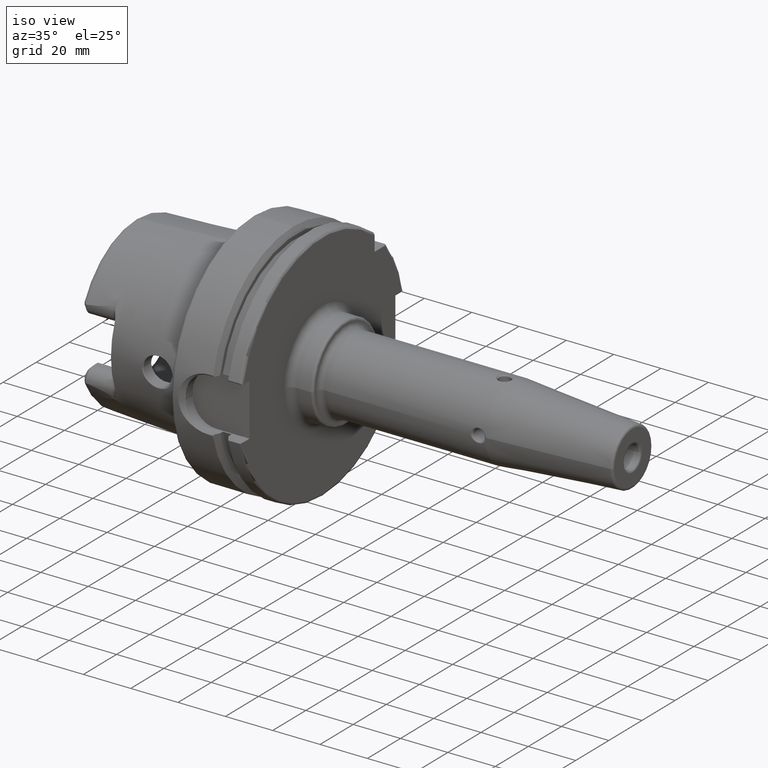
[diagram: clean part render]
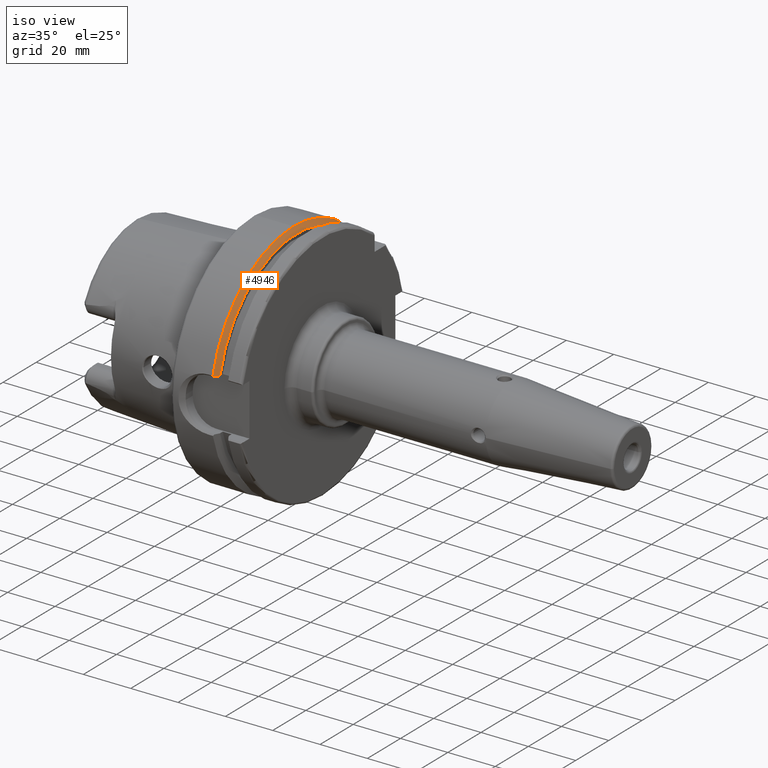
[diagram: same view with one face highlighted and labeled with its STEP entity id]
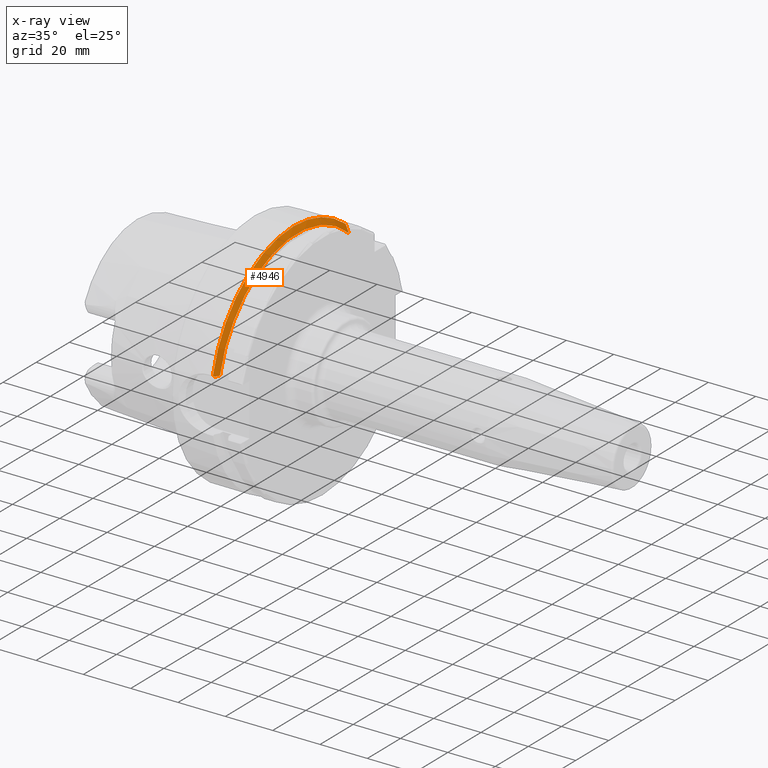
[diagram: x-ray of the same camera — body ghosted, the highlighted face saturated]
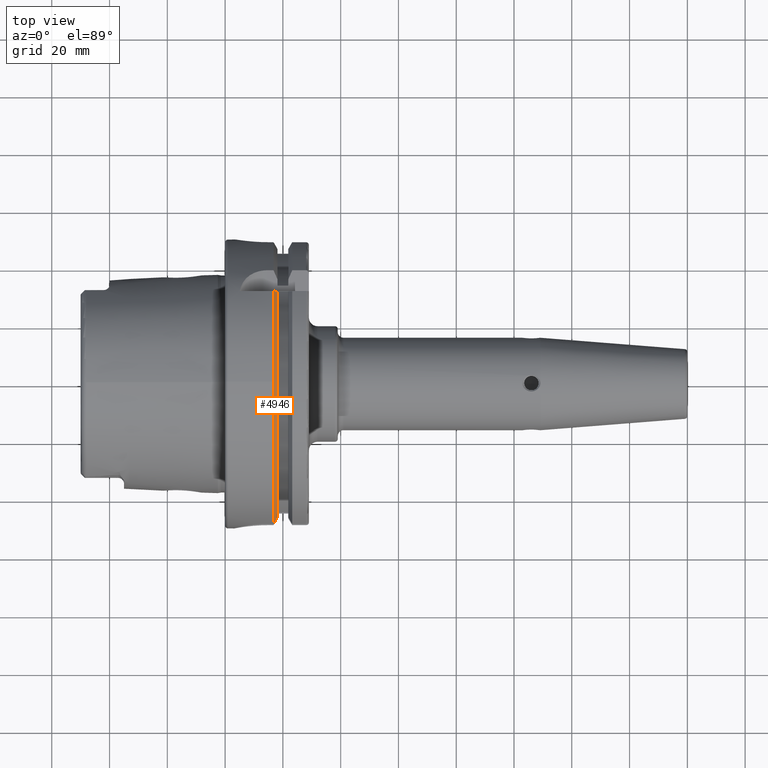
[diagram: same view with one face highlighted and labeled with its STEP entity id]
A machine part, iso view. The second image highlights one B-rep face of the part: STEP entity #4946.
The next image is the same camera in x-ray: the body ghosted, the highlighted face saturated — about 0% of this face is hidden behind the body in this view.
A second angle (top view) of the same face is appended — the face is thin or edge-on in the first view.
In plain terms, the highlighted conical surface has half-angle 60 deg.
Its self-contained STEP definition (entity closure, byte-faithful):
#1367=CARTESIAN_POINT('',(1.675240473581E1,0.E0,0.E0));
#1368=DIRECTION('',(1.E0,0.E0,0.E0));
#1369=DIRECTION('',(0.E0,6.3E-1,7.765951326142E-1));
#1370=AXIS2_PLACEMENT_3D('',#1367,#1368,#1369);
#1405=CARTESIAN_POINT('',(1.675240473581E1,0.E0,0.E0));
#1406=DIRECTION('',(1.E0,0.E0,0.E0));
#1407=DIRECTION('',(0.E0,0.E0,1.E0));
#1408=AXIS2_PLACEMENT_3D('',#1405,#1406,#1407);
#1579=CARTESIAN_POINT('',(1.675240473581E1,-4.866725793949E1,1.146725793949E1));
#1580=CARTESIAN_POINT('',(1.680679393385E1,-4.858892950114E1,1.138892950114E1));
#1581=CARTESIAN_POINT('',(1.691514075307E1,-4.843272472970E1,1.123272472970E1));
#1582=CARTESIAN_POINT('',(1.702262450001E1,-4.827742419714E1,1.107742419714E1));
#1583=CARTESIAN_POINT('',(1.707615063271E1,-4.82E1,1.1E1));
#1585=CARTESIAN_POINT('',(1.8125E1,3.15E1,3.571640491003E1));
#1586=CARTESIAN_POINT('',(1.797978060381E1,3.15E1,3.605177982488E1));
#1587=CARTESIAN_POINT('',(1.768450259773E1,3.15E1,3.672957046665E1));
#1588=CARTESIAN_POINT('',(1.722712283388E1,3.15E1,3.776708560866E1));
#1589=CARTESIAN_POINT('',(1.691228894897E1,3.15E1,3.847316467063E1));
#1590=CARTESIAN_POINT('',(1.675240473581E1,3.15E1,3.882975663071E1));
#1592=CARTESIAN_POINT('',(1.8125E1,0.E0,0.E0));
#1593=DIRECTION('',(1.E0,0.E0,0.E0));
#1594=DIRECTION('',(0.E0,6.614507215588E-1,7.499886285467E-1));
#1595=AXIS2_PLACEMENT_3D('',#1592,#1593,#1594);
#1597=CARTESIAN_POINT('',(1.8125E1,-4.633477721644E1,1.1E1));
#1598=CARTESIAN_POINT('',(1.800993021731E1,-4.653962341094E1,1.1E1));
#1599=CARTESIAN_POINT('',(1.777881047767E1,-4.695091574593E1,1.1E1));
#1600=CARTESIAN_POINT('',(1.742919698008E1,-4.757264841853E1,1.1E1));
#1601=CARTESIAN_POINT('',(1.719415906628E1,-4.799034821794E1,1.1E1));
#1602=CARTESIAN_POINT('',(1.707615063271E1,-4.82E1,1.1E1));
#2891=CARTESIAN_POINT('',(1.8125E1,-4.633477721644E1,1.1E1));
#2893=VERTEX_POINT('',#2891);
#2916=CARTESIAN_POINT('',(1.675240473581E1,3.15E1,3.882975663071E1));
#2918=VERTEX_POINT('',#2916);
#2923=VERTEX_POINT('',#1585);
#2939=CARTESIAN_POINT('',(1.675240473581E1,0.E0,5.E1));
#2940=VERTEX_POINT('',#2939);
#3143=CARTESIAN_POINT('',(1.675240473581E1,-4.866725793949E1,1.146725793949E1));
#3144=VERTEX_POINT('',#3143);
#3146=VERTEX_POINT('',#1583);
#4930=CARTESIAN_POINT('',(1.743870236790E1,0.E0,0.E0));
#4931=DIRECTION('',(-1.E0,0.E0,0.E0));
#4932=DIRECTION('',(0.E0,0.E0,-1.E0));
#4933=AXIS2_PLACEMENT_3D('',#4930,#4931,#4932);
#4934=CONICAL_SURFACE('',#4933,4.881129763210E1,6.E1);
#4935=ORIENTED_EDGE('',*,*,#4871,.F.);
#4936=ORIENTED_EDGE('',*,*,#4766,.F.);
#4937=ORIENTED_EDGE('',*,*,#4704,.F.);
#4939=ORIENTED_EDGE('',*,*,#4938,.F.);
#4941=ORIENTED_EDGE('',*,*,#4940,.T.);
#4943=ORIENTED_EDGE('',*,*,#4942,.T.);
#4944=EDGE_LOOP('',(#4935,#4936,#4937,#4939,#4941,#4943));
#4945=FACE_OUTER_BOUND('',#4944,.F.);
#4946=ADVANCED_FACE('',(#4945),#4934,.T.);
#1371=CIRCLE('',#1370,5.E1);
#1409=CIRCLE('',#1408,5.E1);
#1584=B_SPLINE_CURVE_WITH_KNOTS('',3,(#1579,#1580,#1581,#1582,#1583),
.UNSPECIFIED.,.F.,.F.,(4,1,4),(0.E0,5.E-1,1.E0),.UNSPECIFIED.);
#1591=B_SPLINE_CURVE_WITH_KNOTS('',3,(#1585,#1586,#1587,#1588,#1589,#1590),
.UNSPECIFIED.,.F.,.F.,(4,1,1,4),(0.E0,3.333333333333E-1,6.666666666667E-1,1.E0),
.UNSPECIFIED.);
#1596=CIRCLE('',#1595,4.762259526419E1);
#1603=B_SPLINE_CURVE_WITH_KNOTS('',3,(#1597,#1598,#1599,#1600,#1601,#1602),
.UNSPECIFIED.,.F.,.F.,(4,1,1,4),(0.E0,3.333333333333E-1,6.666666666667E-1,1.E0),
.UNSPECIFIED.);
#4704=EDGE_CURVE('',#2918,#2940,#1371,.T.);
#4766=EDGE_CURVE('',#2940,#3144,#1409,.T.);
#4871=EDGE_CURVE('',#3144,#3146,#1584,.T.);
#4938=EDGE_CURVE('',#2923,#2918,#1591,.T.);
#4940=EDGE_CURVE('',#2923,#2893,#1596,.T.);
#4942=EDGE_CURVE('',#2893,#3146,#1603,.T.);